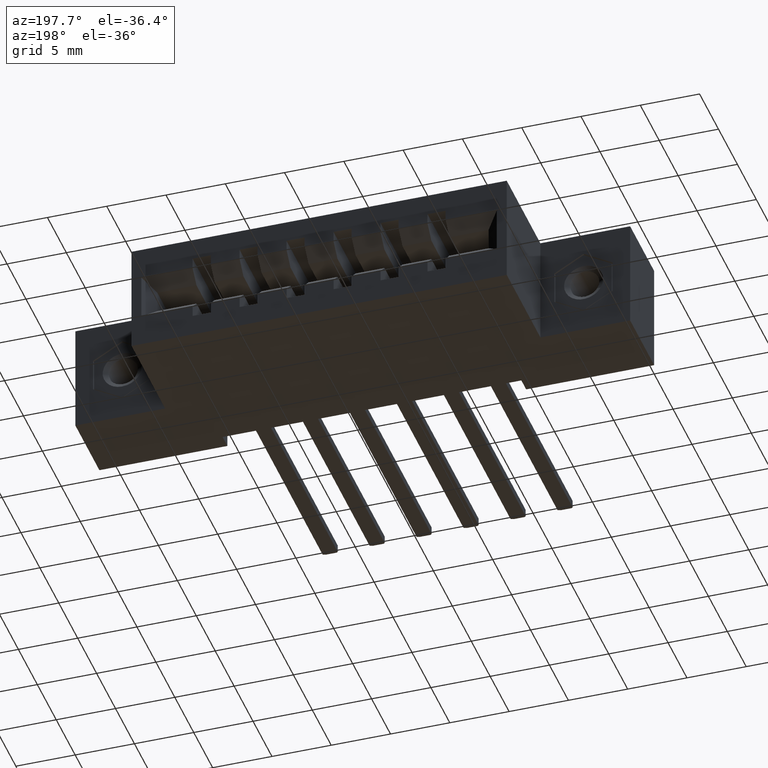
[diagram: clean part render]
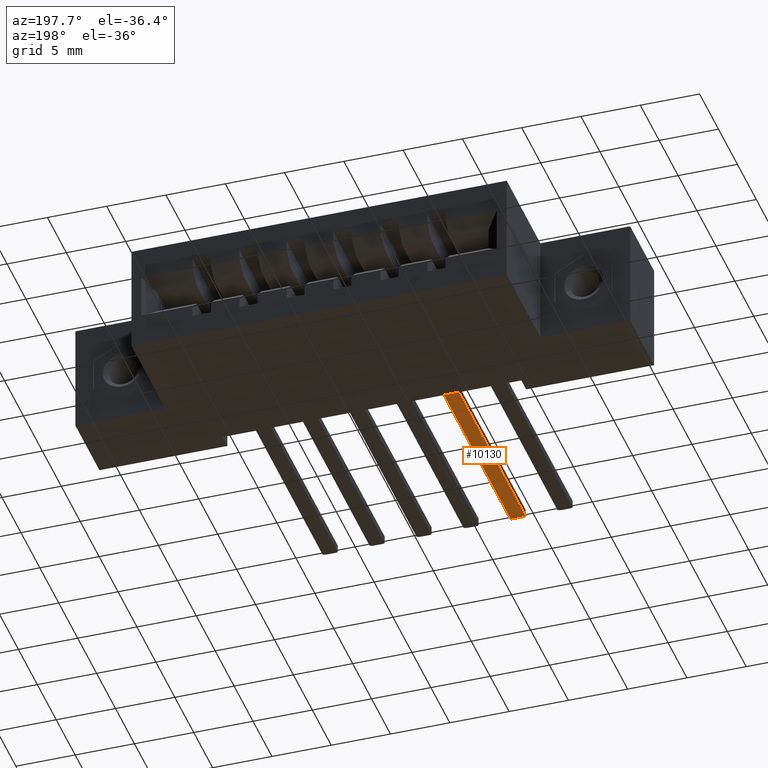
[diagram: same view with one face highlighted and labeled with its STEP entity id]
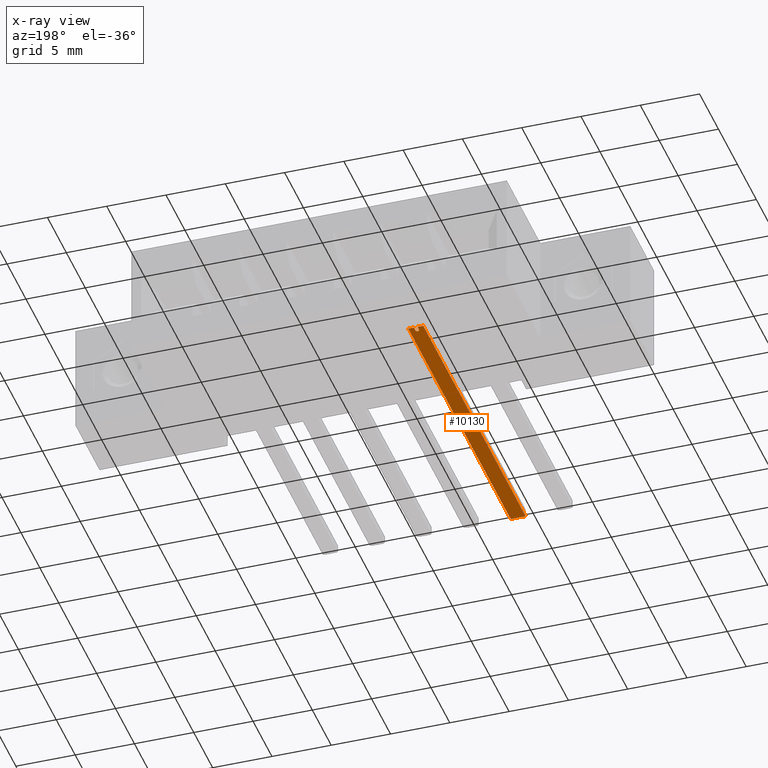
[diagram: x-ray of the same camera — body ghosted, the highlighted face saturated]
A machine part, auxiliary view. The second image highlights one B-rep face of the part: STEP entity #10130.
The next image is the same camera in x-ray: the body ghosted, the highlighted face saturated — about 0% of this face is hidden behind the body in this view.
In plain terms, the highlighted planar face has unit normal (-0, 0, -1).
Its self-contained STEP definition (entity closure, byte-faithful):
#435 = EDGE_LOOP ( 'NONE', ( #2276, #8885, #9071, #4307, #1820, #2484, #2557, #8794, #7625 ) ) ;
#614 = CARTESIAN_POINT ( 'NONE',  ( 0.3462132034355812100, 0.01249999999997159300, -1.203379041209107900E-013 ) ) ;
#860 = DIRECTION ( 'NONE',  ( 5.185851748024009300E-013, -1.117965053259214100E-014, 1.000000000000000000 ) ) ;
#864 = VERTEX_POINT ( 'NONE', #2241 ) ;
#892 = EDGE_CURVE ( 'NONE', #864, #2071, #8546, .T. ) ;
#1084 = LINE ( 'NONE', #6063, #7190 ) ;
#1526 = CARTESIAN_POINT ( 'NONE',  ( 0.3299999999999465000, 0.01250000000000714100, -0.02500000000012225800 ) ) ;
#1594 = AXIS2_PLACEMENT_3D ( 'NONE', #4974, #3592, #7381 ) ;
#1820 = ORIENTED_EDGE ( 'NONE', *, *, #3569, .T. ) ;
#1846 = VECTOR ( 'NONE', #8612, 39.37007874015748100 ) ;
#2071 = VERTEX_POINT ( 'NONE', #4294 ) ;
#2241 = CARTESIAN_POINT ( 'NONE',  ( 0.3299999999999693200, 0.01249999999999911600, -0.006000000000123360600 ) ) ;
#2274 = VECTOR ( 'NONE', #3932, 39.37007874015748100 ) ;
#2276 = ORIENTED_EDGE ( 'NONE', *, *, #8871, .T. ) ;
#2402 = CARTESIAN_POINT ( 'NONE',  ( 0.3462132034355656600, 0.01249999999997548600, -0.006000000000121311900 ) ) ;
#2484 = ORIENTED_EDGE ( 'NONE', *, *, #892, .T. ) ;
#2557 = ORIENTED_EDGE ( 'NONE', *, *, #4283, .T. ) ;
#2714 = DIRECTION ( 'NONE',  ( 1.000000000000000000, -1.068342160437055000E-013, 5.185851748024009300E-013 ) ) ;
#2899 = DIRECTION ( 'NONE',  ( 1.000000000000000000, -1.068342160437055000E-013, 5.185851748024009300E-013 ) ) ;
#3004 = CIRCLE ( 'NONE', #6482, 0.006000000000000086000 ) ;
#3032 = LINE ( 'NONE', #4112, #8958 ) ;
#3039 = CARTESIAN_POINT ( 'NONE',  ( 0.3462132034355812100, 0.01249999999997159300, 0.005999999999879543500 ) ) ;
#3378 = DIRECTION ( 'NONE',  ( -1.068342160437113000E-013, -1.000000000000000000, 1.117965053246174400E-014 ) ) ;
#3453 = CARTESIAN_POINT ( 'NONE',  ( 0.3299999999999465000, 0.01250000000000714100, -0.02500000000012225800 ) ) ;
#3487 = DIRECTION ( 'NONE',  ( -5.185851748024009300E-013, 1.117965053259214100E-014, -1.000000000000000000 ) ) ;
#3569 = EDGE_CURVE ( 'NONE', #4968, #864, #1084, .T. ) ;
#3592 = DIRECTION ( 'NONE',  ( -1.075508556210991000E-013, 1.000000000000000000, -1.117965053257292300E-014 ) ) ;
#3686 = EDGE_CURVE ( 'NONE', #7192, #6316, #6104, .T. ) ;
#3932 = DIRECTION ( 'NONE',  ( -5.185851748024009300E-013, 1.117965053259214100E-014, -1.000000000000000000 ) ) ;
#3967 = CARTESIAN_POINT ( 'NONE',  ( 1.395213203435597100, 0.01249999999986604000, -0.02499999999849585000 ) ) ;
#4085 = VERTEX_POINT ( 'NONE', #8204 ) ;
#4112 = CARTESIAN_POINT ( 'NONE',  ( 1.395213203435597100, 0.01249999999986604000, -0.02499999999849585000 ) ) ;
#4281 = CARTESIAN_POINT ( 'NONE',  ( 0.3299999999999465000, 0.01250000000000714100, -0.02500000000012225800 ) ) ;
#4283 = EDGE_CURVE ( 'NONE', #2071, #9079, #8261, .T. ) ;
#4294 = CARTESIAN_POINT ( 'NONE',  ( 0.3299999999999465000, 0.01250000000000714100, -0.02500000000012225800 ) ) ;
#4307 = ORIENTED_EDGE ( 'NONE', *, *, #8854, .T. ) ;
#4480 = CARTESIAN_POINT ( 'NONE',  ( 0.3299999999999465000, 0.01250000000000714100, -0.02500000000012225800 ) ) ;
#4717 = FACE_OUTER_BOUND ( 'NONE', #435, .T. ) ;
#4968 = VERTEX_POINT ( 'NONE', #2402 ) ;
#4974 = CARTESIAN_POINT ( 'NONE',  ( 0.3462132034355812100, 0.01249999999997159300, -1.203379041209107900E-013 ) ) ;
#5007 = LINE ( 'NONE', #4281, #6352 ) ;
#5267 = DIRECTION ( 'NONE',  ( -1.075508556210991000E-013, 1.000000000000000000, -1.117965053257292300E-014 ) ) ;
#5353 = VERTEX_POINT ( 'NONE', #7695 ) ;
#5363 = VECTOR ( 'NONE', #2899, 39.37007874015748100 ) ;
#5373 = DIRECTION ( 'NONE',  ( 1.000000000000000000, -1.067128122525087600E-013, 5.185851748024025400E-013 ) ) ;
#5404 = LINE ( 'NONE', #9419, #6498 ) ;
#5550 = EDGE_CURVE ( 'NONE', #9079, #4085, #3032, .T. ) ;
#5745 = PLANE ( 'NONE',  #6241 ) ;
#6063 = CARTESIAN_POINT ( 'NONE',  ( 0.3299999999999693200, 0.01249999999999911600, -0.006000000000123360600 ) ) ;
#6104 = LINE ( 'NONE', #7846, #1846 ) ;
#6110 = CIRCLE ( 'NONE', #1594, 0.006000000000000086000 ) ;
#6241 = AXIS2_PLACEMENT_3D ( 'NONE', #3453, #3378, #2714 ) ;
#6286 = EDGE_CURVE ( 'NONE', #6316, #7724, #3004, .T. ) ;
#6316 = VERTEX_POINT ( 'NONE', #3039 ) ;
#6352 = VECTOR ( 'NONE', #3487, 39.37007874015748100 ) ;
#6482 = AXIS2_PLACEMENT_3D ( 'NONE', #614, #5267, #5373 ) ;
#6498 = VECTOR ( 'NONE', #10110, 39.37007874015748100 ) ;
#6843 = CARTESIAN_POINT ( 'NONE',  ( 0.3522132034355813200, 0.01249999999997223600, -1.181573140139817600E-013 ) ) ;
#7190 = VECTOR ( 'NONE', #7685, 39.37007874015748100 ) ;
#7192 = VERTEX_POINT ( 'NONE', #7558 ) ;
#7381 = DIRECTION ( 'NONE',  ( 1.000000000000000000, -1.067128122525087600E-013, 5.185851748024025400E-013 ) ) ;
#7558 = CARTESIAN_POINT ( 'NONE',  ( 0.3299999999999848600, 0.01249999999998385000, 0.005999999999877494800 ) ) ;
#7625 = ORIENTED_EDGE ( 'NONE', *, *, #7656, .F. ) ;
#7656 = EDGE_CURVE ( 'NONE', #5353, #4085, #5404, .T. ) ;
#7685 = DIRECTION ( 'NONE',  ( -1.000000000000000000, 1.068342160437054300E-013, -5.184571194276979600E-013 ) ) ;
#7695 = CARTESIAN_POINT ( 'NONE',  ( 0.3300000000000377100, 0.01249999999998357800, 0.02499999999996053300 ) ) ;
#7724 = VERTEX_POINT ( 'NONE', #6843 ) ;
#7846 = CARTESIAN_POINT ( 'NONE',  ( 0.3299999999999848600, 0.01249999999998385000, 0.005999999999877494800 ) ) ;
#8204 = CARTESIAN_POINT ( 'NONE',  ( 1.395213203435597100, 0.01249999999984603000, 0.02500000000158693700 ) ) ;
#8261 = LINE ( 'NONE', #4480, #5363 ) ;
#8546 = LINE ( 'NONE', #1526, #2274 ) ;
#8612 = DIRECTION ( 'NONE',  ( 1.000000000000000000, -1.068342160437055000E-013, 5.185851748024009300E-013 ) ) ;
#8794 = ORIENTED_EDGE ( 'NONE', *, *, #5550, .T. ) ;
#8854 = EDGE_CURVE ( 'NONE', #7724, #4968, #6110, .T. ) ;
#8871 = EDGE_CURVE ( 'NONE', #5353, #7192, #5007, .T. ) ;
#8885 = ORIENTED_EDGE ( 'NONE', *, *, #3686, .T. ) ;
#8958 = VECTOR ( 'NONE', #860, 39.37007874015748100 ) ;
#9071 = ORIENTED_EDGE ( 'NONE', *, *, #6286, .T. ) ;
#9079 = VERTEX_POINT ( 'NONE', #3967 ) ;
#9419 = CARTESIAN_POINT ( 'NONE',  ( 0.3300000000000377100, 0.01249999999998357800, 0.02499999999996053300 ) ) ;
#10110 = DIRECTION ( 'NONE',  ( 1.000000000000000000, -1.068342160437055000E-013, 5.185851748024009300E-013 ) ) ;
#10130 = ADVANCED_FACE ( 'NONE', ( #4717 ), #5745, .T. ) ;